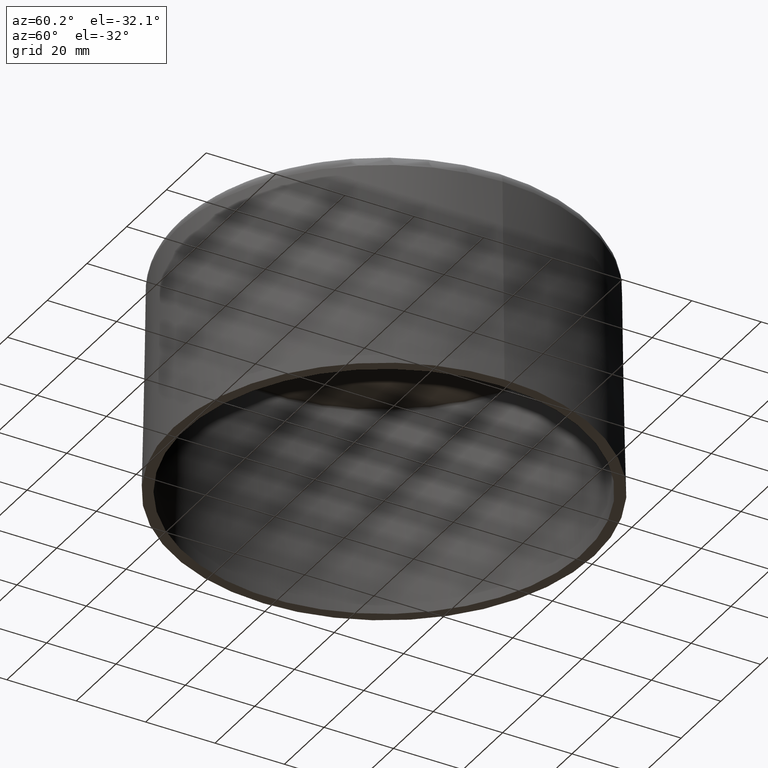
[diagram: clean part render]
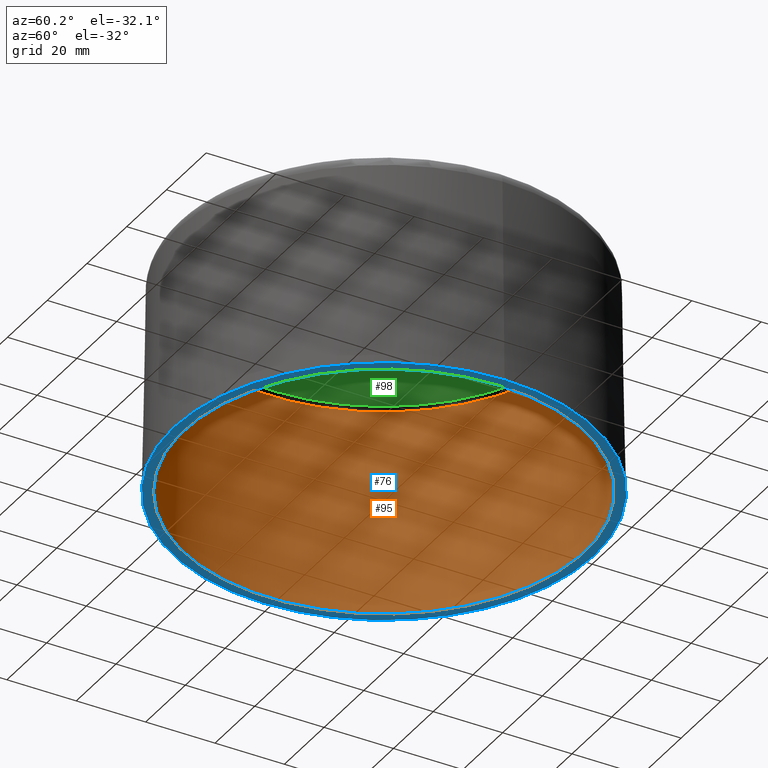
[diagram: same view with three faces highlighted in distinct colors, each labeled with its STEP entity id]
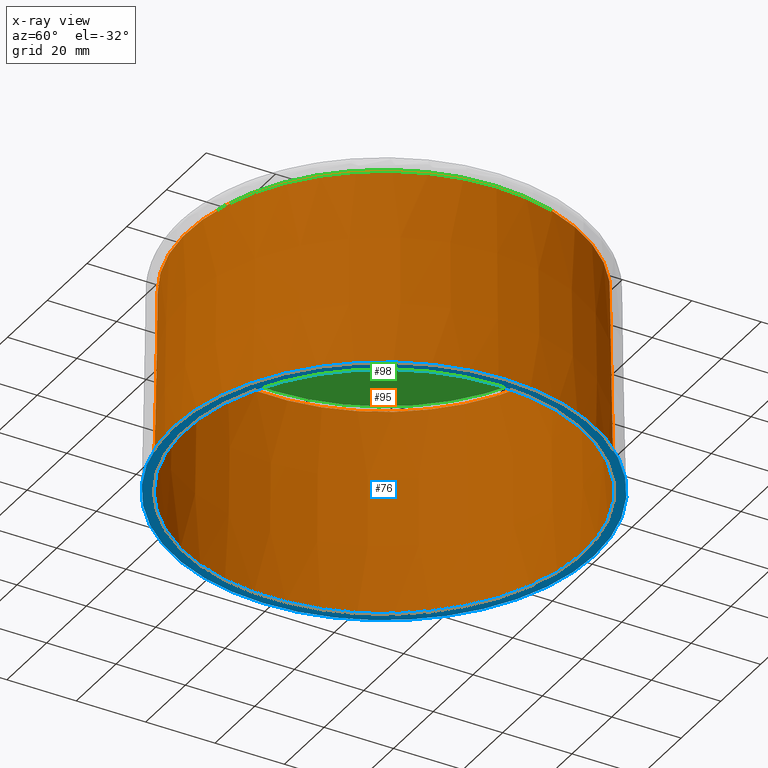
[diagram: x-ray of the same camera — body ghosted, the three highlighted faces saturated]
A machine part, auxiliary view with three faces highlighted in distinct colors.
The next image is the same camera in x-ray (body ghosted, the three faces saturated) — at least one of them is partly hidden behind the body in this view.
Their STEP definitions:

[orange] entity #95 — the highlighted conical surface has half-angle 1 deg.
#95 = ADVANCED_FACE( '', ( #213, #214 ), #215, .F. );
#213 = FACE_OUTER_BOUND( '', #400, .T. );
#214 = FACE_BOUND( '', #401, .T. );
#215 = CONICAL_SURFACE( '', #402, 56.6434984841942, 0.0174532925199428 );
#400 = EDGE_LOOP( '', ( #750 ) );
#401 = EDGE_LOOP( '', ( #751 ) );
#402 = AXIS2_PLACEMENT_3D( '', #752, #753, #754 );
#750 = ORIENTED_EDGE( '', *, *, #1302, .F. );
#751 = ORIENTED_EDGE( '', *, *, #1344, .T. );
#752 = CARTESIAN_POINT( '', ( -3.61365736016664E-015, 0.000000000000000, 59.0174524064373 ) );
#753 = DIRECTION( '', ( 6.12303176911189E-017, 0.000000000000000, -1.00000000000000 ) );
#754 = DIRECTION( '', ( -1.00000000000000, 0.000000000000000, -6.12303176911189E-017 ) );
#1302 = EDGE_CURVE( '', #1566, #1566, #1567, .T. );
#1344 = EDGE_CURVE( '', #1636, #1636, #1637, .T. );
#1566 = VERTEX_POINT( '', #2044 );
#1567 = CIRCLE( '', #2045, 57.6736519478465 );
#1636 = VERTEX_POINT( '', #2224 );
#1637 = CIRCLE( '', #2225, 56.6434984841942 );
#2044 = CARTESIAN_POINT( '', ( 57.6736519478465, 0.000000000000000, -3.40751787273357E-015 ) );
#2045 = AXIS2_PLACEMENT_3D( '', #2508, #2509, #2510 );
#2224 = CARTESIAN_POINT( '', ( 56.6434984841942, 0.000000000000000, 59.0174524064373 ) );
#2225 = AXIS2_PLACEMENT_3D( '', #2532, #2533, #2534 );
#2508 = CARTESIAN_POINT( '', ( 4.24870678161208E-031, 0.000000000000000, -6.93889390390723E-015 ) );
#2509 = DIRECTION( '', ( -6.12303176911189E-017, 0.000000000000000, 1.00000000000000 ) );
#2510 = DIRECTION( '', ( 1.00000000000000, 0.000000000000000, 6.12303176911189E-017 ) );
#2532 = CARTESIAN_POINT( '', ( -3.61365736016664E-015, 0.000000000000000, 59.0174524064373 ) );
#2533 = DIRECTION( '', ( -6.12303176911189E-017, 0.000000000000000, 1.00000000000000 ) );
#2534 = DIRECTION( '', ( 1.00000000000000, 0.000000000000000, 6.12303176911189E-017 ) );

[blue] entity #76 — the highlighted planar face has unit normal (-0, 0, 1).
#76 = ADVANCED_FACE( '', ( #171, #172 ), #173, .F. );
#171 = FACE_OUTER_BOUND( '', #354, .T. );
#172 = FACE_BOUND( '', #355, .T. );
#173 = PLANE( '', #356 );
#354 = EDGE_LOOP( '', ( #599 ) );
#355 = EDGE_LOOP( '', ( #600 ) );
#356 = AXIS2_PLACEMENT_3D( '', #601, #602, #603 );
#599 = ORIENTED_EDGE( '', *, *, #1301, .F. );
#600 = ORIENTED_EDGE( '', *, *, #1302, .T. );
#601 = CARTESIAN_POINT( '', ( 1.06217669540302E-030, 57.6736519478465, -1.73472347597681E-014 ) );
#602 = DIRECTION( '', ( -6.12303176911189E-017, 0.000000000000000, 1.00000000000000 ) );
#603 = DIRECTION( '', ( 1.00000000000000, 0.000000000000000, 6.12303176911189E-017 ) );
#1301 = EDGE_CURVE( '', #1564, #1564, #1565, .T. );
#1302 = EDGE_CURVE( '', #1566, #1566, #1567, .T. );
#1564 = VERTEX_POINT( '', #2042 );
#1565 = CIRCLE( '', #2043, 60.6741089319782 );
#1566 = VERTEX_POINT( '', #2044 );
#1567 = CIRCLE( '', #2045, 57.6736519478465 );
#2042 = CARTESIAN_POINT( '', ( 60.6741089319782, 0.000000000000000, -2.40404806500983E-014 ) );
#2043 = AXIS2_PLACEMENT_3D( '', #2505, #2506, #2507 );
#2044 = CARTESIAN_POINT( '', ( 57.6736519478465, 0.000000000000000, -3.40751787273357E-015 ) );
#2045 = AXIS2_PLACEMENT_3D( '', #2508, #2509, #2510 );
#2505 = CARTESIAN_POINT( '', ( 1.69948271264483E-030, 0.000000000000000, -2.77555756156289E-014 ) );
#2506 = DIRECTION( '', ( -6.12303176911189E-017, 0.000000000000000, 1.00000000000000 ) );
#2507 = DIRECTION( '', ( 1.00000000000000, 0.000000000000000, 6.12303176911189E-017 ) );
#2508 = CARTESIAN_POINT( '', ( 4.24870678161208E-031, 0.000000000000000, -6.93889390390723E-015 ) );
#2509 = DIRECTION( '', ( -6.12303176911189E-017, 0.000000000000000, 1.00000000000000 ) );
#2510 = DIRECTION( '', ( 1.00000000000000, 0.000000000000000, 6.12303176911189E-017 ) );

[green] entity #98 — the highlighted planar face has unit normal (-0, 0, 1).
#98 = ADVANCED_FACE( '', ( #221 ), #222, .F. );
#221 = FACE_OUTER_BOUND( '', #408, .T. );
#222 = PLANE( '', #409 );
#408 = EDGE_LOOP( '', ( #767 ) );
#409 = AXIS2_PLACEMENT_3D( '', #768, #769, #770 );
#767 = ORIENTED_EDGE( '', *, *, #1348, .F. );
#768 = CARTESIAN_POINT( '', ( -3.67381906146713E-015, 0.000000000000000, 60.0000000000000 ) );
#769 = DIRECTION( '', ( -6.12303176911189E-017, 0.000000000000000, 1.00000000000000 ) );
#770 = DIRECTION( '', ( 1.00000000000000, 0.000000000000000, 6.12303176911189E-017 ) );
#1348 = EDGE_CURVE( '', #1643, #1643, #1644, .T. );
#1643 = VERTEX_POINT( '', #2234 );
#1644 = CIRCLE( '', #2235, 55.6436507890378 );
#2234 = CARTESIAN_POINT( '', ( 55.6436507890378, 0.000000000000000, 60.0000000000000 ) );
#2235 = AXIS2_PLACEMENT_3D( '', #2538, #2539, #2540 );
#2538 = CARTESIAN_POINT( '', ( -3.67381906146713E-015, 0.000000000000000, 60.0000000000000 ) );
#2539 = DIRECTION( '', ( -6.12303176911189E-017, 0.000000000000000, 1.00000000000000 ) );
#2540 = DIRECTION( '', ( 1.00000000000000, 0.000000000000000, 6.12303176911189E-017 ) );